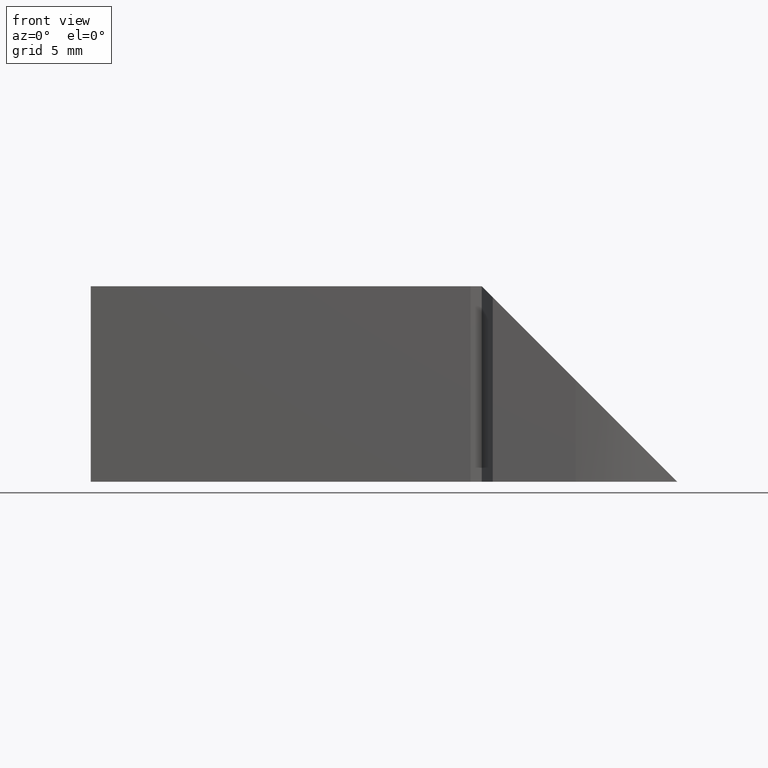
[diagram: clean part render]
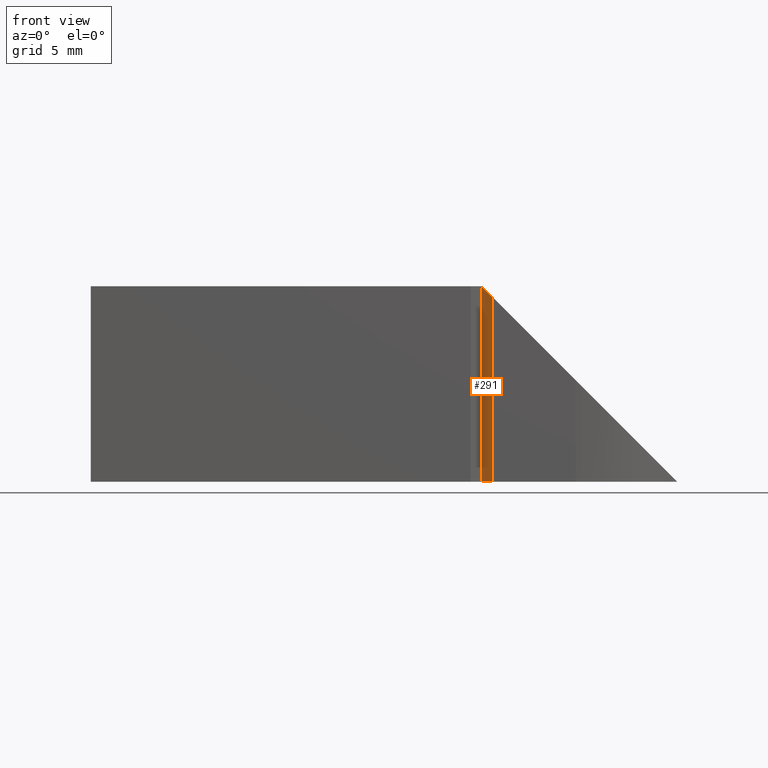
[diagram: same view with one face highlighted and labeled with its STEP entity id]
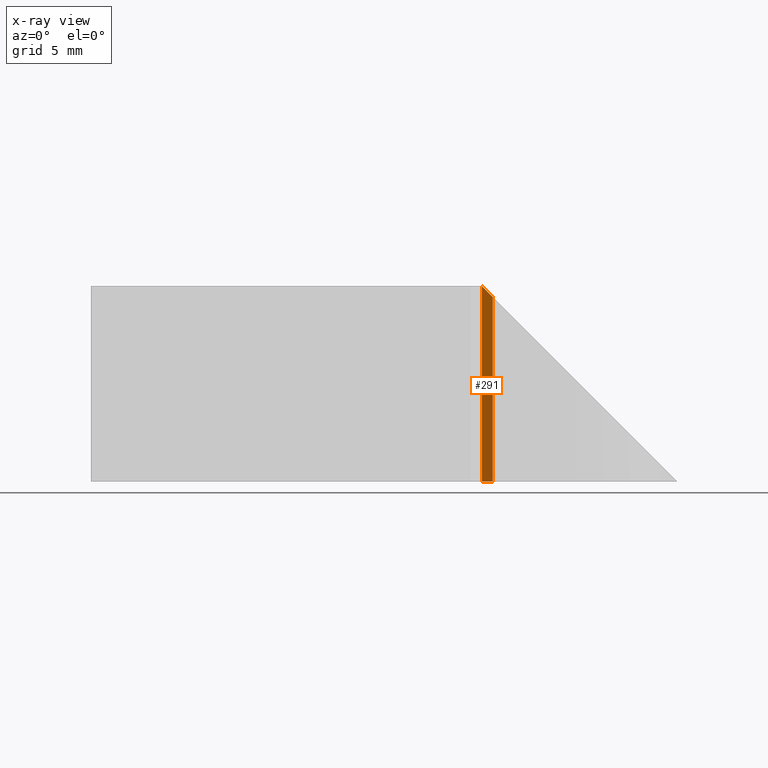
[diagram: x-ray of the same camera — body ghosted, the highlighted face saturated]
A machine part, front view. The second image highlights one B-rep face of the part: STEP entity #291.
The next image is the same camera in x-ray: the body ghosted, the highlighted face saturated — about 0% of this face is hidden behind the body in this view.
In plain terms, the highlighted planar face has unit normal (0.7071, 0.7071, 0).
Its self-contained STEP definition (entity closure, byte-faithful):
#236=CARTESIAN_POINT('',(18.100000000001831,-9.434314575047713,-1.421085E-014));
#237=VERTEX_POINT('',#236);
#244=CARTESIAN_POINT('',(18.100000000001831,-9.434314575047713,9.999999999999986));
#245=VERTEX_POINT('',#244);
#246=CARTESIAN_POINT('',(18.100000000001831,-9.434314575047713,9.999999999999986));
#247=DIRECTION('',(0.0,0.0,-1.0));
#248=VECTOR('',#247,10.0);
#249=LINE('',#246,#248);
#250=EDGE_CURVE('',#245,#237,#249,.T.);
#261=CARTESIAN_POINT('',(18.100000000001831,-9.434314575047713,9.999999999999986));
#262=DIRECTION('',(0.707106781186421,0.707106781186674,8.659561E-017));
#263=DIRECTION('',(0.707106781186674,-0.707106781186421,-8.659561E-017));
#264=AXIS2_PLACEMENT_3D('',#261,#262,#263);
#265=PLANE('',#264);
#266=CARTESIAN_POINT('',(18.665685424950855,-9.999999999996536,-1.421085E-014));
#267=VERTEX_POINT('',#266);
#268=CARTESIAN_POINT('',(18.100000000001831,-9.434314575047713,-1.421085E-014));
#269=DIRECTION('',(0.707106781186675,-0.707106781186420,-8.659561E-017));
#270=VECTOR('',#269,0.799999999999558);
#271=LINE('',#268,#270);
#272=EDGE_CURVE('',#237,#267,#271,.T.);
#273=ORIENTED_EDGE('',*,*,#272,.T.);
#274=CARTESIAN_POINT('',(18.665685424950855,-9.999999999996536,9.434314575049996));
#275=VERTEX_POINT('',#274);
#276=CARTESIAN_POINT('',(18.665685424950855,-9.999999999996536,9.434314575049989));
#277=DIRECTION('',(0.0,0.0,-1.0));
#278=VECTOR('',#277,9.434314575050003);
#279=LINE('',#276,#278);
#280=EDGE_CURVE('',#275,#267,#279,.T.);
#281=ORIENTED_EDGE('',*,*,#280,.F.);
#282=CARTESIAN_POINT('',(18.100000000001831,-9.434314575047713,9.999999999999986));
#283=DIRECTION('',(0.577350269189365,-0.577350269189157,-0.577350269190355));
#284=VECTOR('',#283,0.979795897113348);
#285=LINE('',#282,#284);
#286=EDGE_CURVE('',#245,#275,#285,.T.);
#287=ORIENTED_EDGE('',*,*,#286,.F.);
#288=ORIENTED_EDGE('',*,*,#250,.T.);
#289=EDGE_LOOP('',(#273,#281,#287,#288));
#290=FACE_OUTER_BOUND('',#289,.T.);
#291=ADVANCED_FACE('',(#290),#265,.F.);